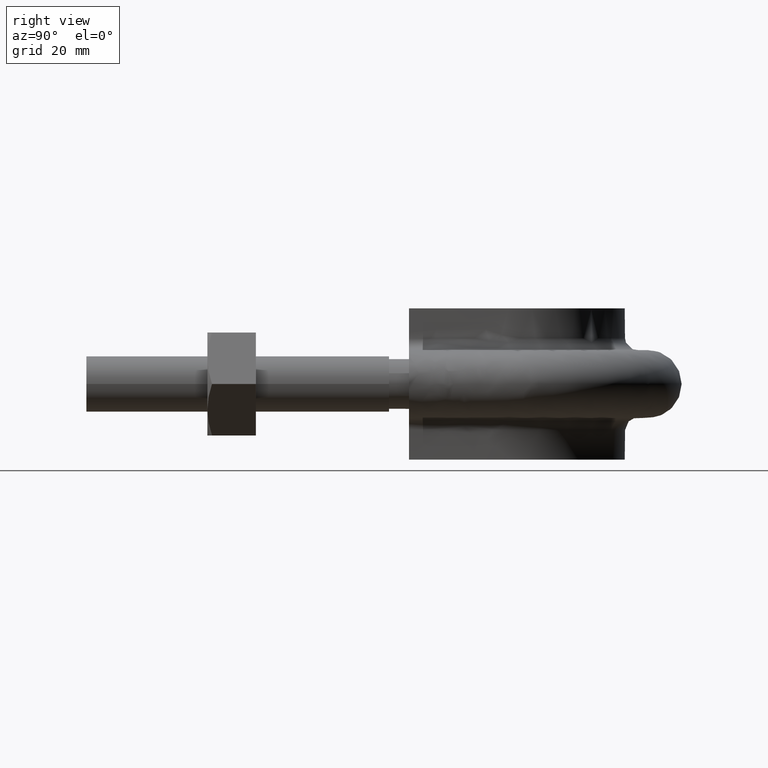
[diagram: clean part render]
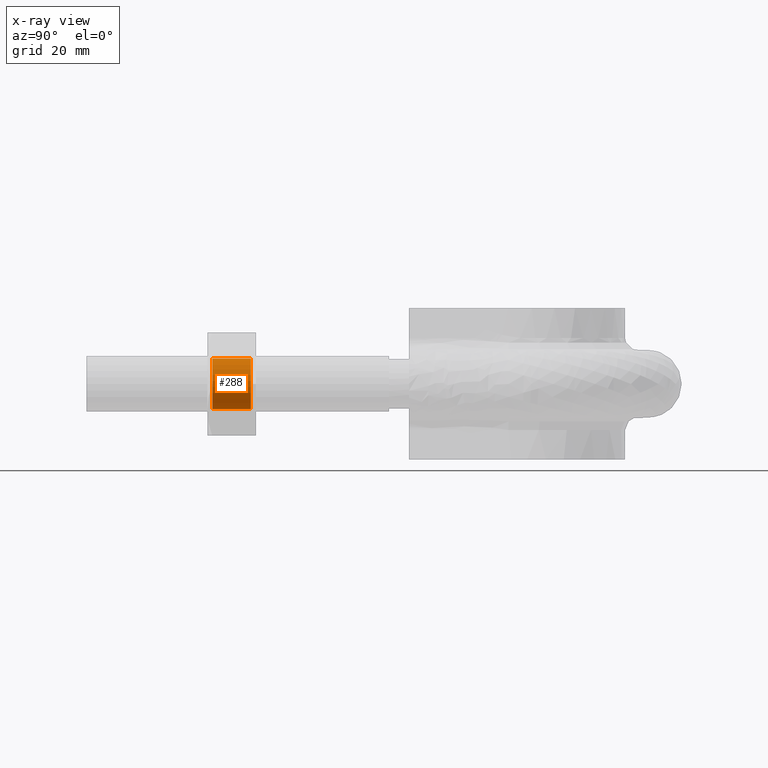
[diagram: x-ray — body ghosted, one internal face saturated and labeled with its STEP entity id]
A machine part, right view, then the same camera in x-ray: the body is ghosted and one INTERNAL B-rep face — a face not visible from any outside direction — is saturated and labeled: STEP entity #288.
In plain terms, the highlighted cylindrical surface (bore or boss wall) has radius 4.188 mm, axis along (0, 1, 0).
Its self-contained STEP definition (entity closure, byte-faithful):
#288 = ADVANCED_FACE( '', ( #452, #453 ), #454, .F. );
#452 = FACE_OUTER_BOUND( '', #1449, .T. );
#453 = FACE_OUTER_BOUND( '', #1450, .T. );
#454 = CYLINDRICAL_SURFACE( '', #1451, 4.18800000000000 );
#1449 = EDGE_LOOP( '', ( #1956 ) );
#1450 = EDGE_LOOP( '', ( #1957 ) );
#1451 = AXIS2_PLACEMENT_3D( '', #1958, #1959, #1960 );
#1956 = ORIENTED_EDGE( '', *, *, #2152, .F. );
#1957 = ORIENTED_EDGE( '', *, *, #2121, .T. );
#1958 = CARTESIAN_POINT( '', ( 23.0000000000000, 28.0000000000000, 8.16350025772961E-015 ) );
#1959 = DIRECTION( '', ( 2.44921270764475E-016, 1.00000000000000, 3.06151588455594E-016 ) );
#1960 = DIRECTION( '', ( -0.866025403784439, 5.90322481814056E-017, 0.500000000000000 ) );
#2121 = EDGE_CURVE( '', #2352, #2352, #2353, .T. );
#2152 = EDGE_CURVE( '', #2401, #2401, #2402, .F. );
#2352 = VERTEX_POINT( '', #2906 );
#2353 = CIRCLE( '', #2907, 4.18800000000000 );
#2401 = VERTEX_POINT( '', #2995 );
#2402 = CIRCLE( '', #2996, 4.18800000000000 );
#2906 = CARTESIAN_POINT( '', ( 23.0000000000000, 27.1880000000000, 4.18800000000001 ) );
#2907 = AXIS2_PLACEMENT_3D( '', #3175, #3176, #3177 );
#2995 = CARTESIAN_POINT( '', ( 23.0000000000000, 20.8120000000000, -4.18799999999999 ) );
#2996 = AXIS2_PLACEMENT_3D( '', #3230, #3231, #3232 );
#3175 = CARTESIAN_POINT( '', ( 23.0000000000000, 27.1880000000000, 7.91490516790367E-015 ) );
#3176 = DIRECTION( '', ( 2.44921270764475E-016, 1.00000000000000, 3.06151588455594E-016 ) );
#3177 = DIRECTION( '', ( 0.000000000000000, -3.06151588455594E-016, 1.00000000000000 ) );
#3230 = CARTESIAN_POINT( '', ( 23.0000000000000, 20.8120000000000, 5.96288263991079E-015 ) );
#3231 = DIRECTION( '', ( -2.44921270764475E-016, -1.00000000000000, -3.06151588455594E-016 ) );
#3232 = DIRECTION( '', ( 0.000000000000000, 3.06151588455594E-016, -1.00000000000000 ) );